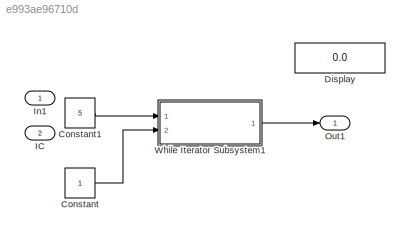
MODEL slx_e993ae96710d
KIND model
CONFIG AbsTol = auto
CONFIG EnableMultiTasking = off
CONFIG FixedStep = auto
CONFIG MaxStep = auto
CONFIG MinStep = auto
CONFIG RelTol = 1e-3
CONFIG SampleTimeConstraint = Unconstrained
CONFIG SolverName = VariableStepAuto
CONFIG StartTime = 0.0
CONFIG StopTime = 10.0
BLOCK [Constant] Constant
  OutDataTypeStr = uint8
BLOCK [Constant] Constant1
  OutDataTypeStr = uint8
  Value = 5
BLOCK [Display] Display
  Decimation = 1
  Ports = [1]
BLOCK [Inport] IC
  Port = 2
BLOCK [Inport] In1
BLOCK [Outport] Out1
  OutDataTypeStr = uint32
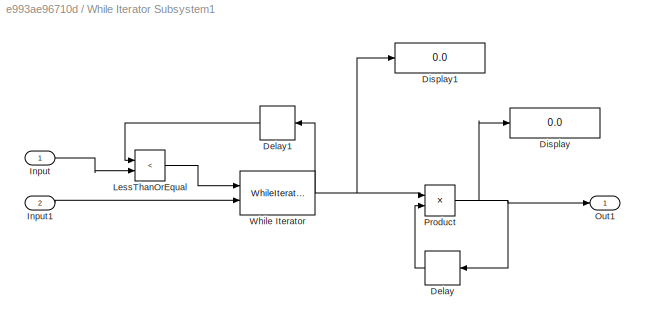
BLOCK [SubSystem] While Iterator Subsystem1
  Ports = [2, 1]
  RequestExecContextInheritance = off
  TreatAsAtomicUnit = on
BLOCK [Delay] While Iterator Subsystem1/Delay
  DelayLength = 1
  InitialCondition = 1
  InputPortMap = u0
  Ports = [1, 1]
BLOCK [Delay] While Iterator Subsystem1/Delay1
  DelayLength = 0
  InitialCondition = 0
  InputPortMap = u0
  Ports = [1, 1]
BLOCK [Display] While Iterator Subsystem1/Display
  Decimation = 1
  Ports = [1]
BLOCK [Display] While Iterator Subsystem1/Display1
  Decimation = 1
  Ports = [1]
BLOCK [Inport] While Iterator Subsystem1/Input
  OutDataTypeStr = uint8
BLOCK [Inport] While Iterator Subsystem1/Input1
  OutDataTypeStr = uint8
  Port = 2
BLOCK [RelationalOperator] While Iterator Subsystem1/LessThanOrEqual
  InputSameDT = off
  Operator = <
  OutDataTypeStr = boolean
  Ports = [2, 1]
  RndMeth = Simplest
BLOCK [Outport] While Iterator Subsystem1/Out1
  OutDataTypeStr = uint32
BLOCK [Product] While Iterator Subsystem1/Product
  OutDataTypeStr = uint32
  Ports = [2, 1]
BLOCK [WhileIterator] While Iterator Subsystem1/While Iterator
  MaxIters = -1
  OutputDataType = uint32
  Ports = [2, 1]
  ShowIterationPort = on
LINE Constant1:1 -> While Iterator Subsystem1:1
LINE Constant:1 -> While Iterator Subsystem1:2
LINE While Iterator Subsystem1/Delay1:1 -> While Iterator Subsystem1/LessThanOrEqual:1
LINE While Iterator Subsystem1/Delay:1 -> While Iterator Subsystem1/Product:2
LINE While Iterator Subsystem1/Input1:1 -> While Iterator Subsystem1/While Iterator:2
LINE While Iterator Subsystem1/Input:1 -> While Iterator Subsystem1/LessThanOrEqual:2
LINE While Iterator Subsystem1/LessThanOrEqual:1 -> While Iterator Subsystem1/While Iterator:1
NET While Iterator Subsystem1/Product:1 -> While Iterator Subsystem1/Delay:1, While Iterator Subsystem1/Display:1, While Iterator Subsystem1/Out1:1
NET While Iterator Subsystem1/While Iterator:1 -> While Iterator Subsystem1/Delay1:1, While Iterator Subsystem1/Display1:1, While Iterator Subsystem1/Product:1
LINE While Iterator Subsystem1:1 -> Out1:1
note: NET lines group one-source signal fan-out (src -> all destinations, sorted); 1:1 wires keep LINE
